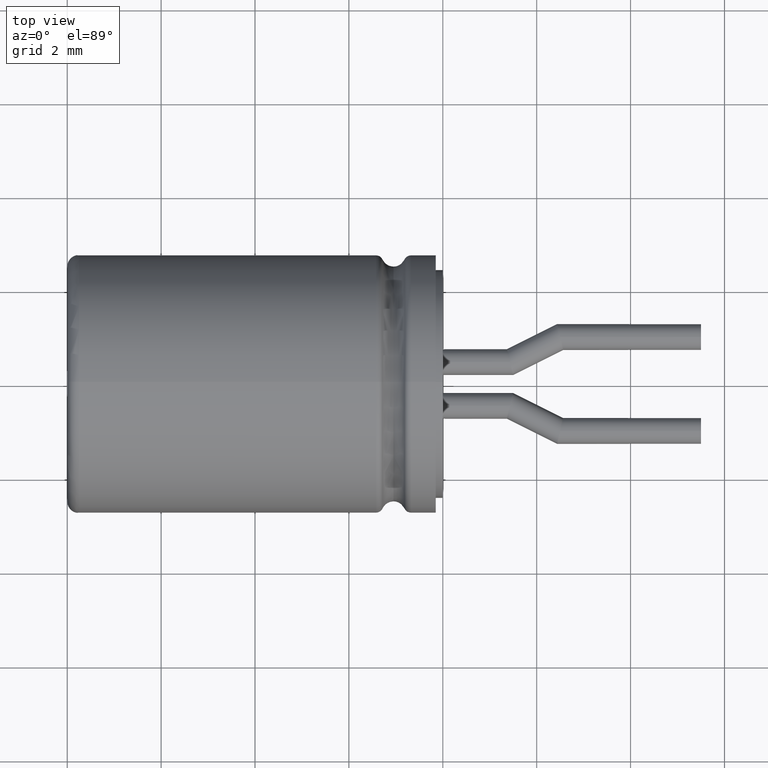
[diagram: clean part render]
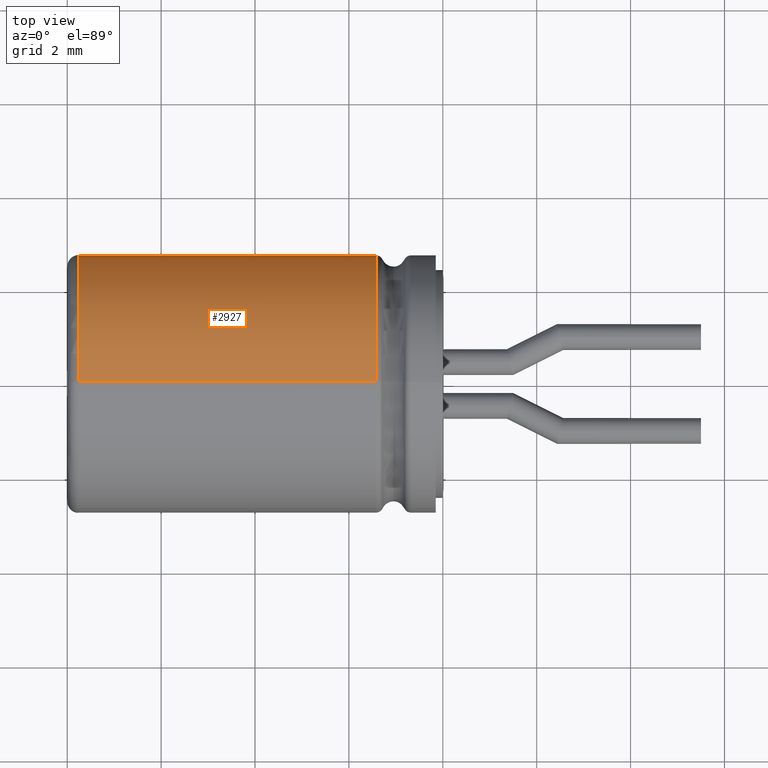
[diagram: same view with one face highlighted and labeled with its STEP entity id]
A machine part, top view. The second image highlights one B-rep face of the part: STEP entity #2927.
In plain terms, the highlighted cylindrical surface (partial cylindrical patch) has radius 2.75 mm, axis along (-1, -0, -0).
Its self-contained STEP definition (entity closure, byte-faithful):
#3 = EDGE_LOOP ( 'NONE', ( #341, #646, #3466, #445 ) ) ;
#249 = EDGE_CURVE ( 'NONE', #449, #412, #2370, .T. ) ;
#275 = EDGE_CURVE ( 'NONE', #1449, #592, #2414, .T. ) ;
#323 = VECTOR ( 'NONE', #3931, 1000.000000000000000 ) ;
#341 = ORIENTED_EDGE ( 'NONE', *, *, #672, .T. ) ;
#412 = VERTEX_POINT ( 'NONE', #3397 ) ;
#420 = CARTESIAN_POINT ( 'NONE',  ( 6.579190075645214200, 0.0000000000000000000, 2.750000000000000000 ) ) ;
#445 = ORIENTED_EDGE ( 'NONE', *, *, #275, .F. ) ;
#449 = VERTEX_POINT ( 'NONE', #613 ) ;
#475 = AXIS2_PLACEMENT_3D ( 'NONE', #1681, #1978, #3252 ) ;
#592 = VERTEX_POINT ( 'NONE', #1295 ) ;
#613 = CARTESIAN_POINT ( 'NONE',  ( 6.579190075645214200, 3.367778697655221000E-016, -2.750000000000000000 ) ) ;
#646 = ORIENTED_EDGE ( 'NONE', *, *, #249, .T. ) ;
#672 = EDGE_CURVE ( 'NONE', #1449, #449, #3185, .T. ) ;
#721 = CARTESIAN_POINT ( 'NONE',  ( 7.849999999999999600, 0.0000000000000000000, 0.0000000000000000000 ) ) ;
#1102 = DIRECTION ( 'NONE',  ( -1.000000000000000000, -0.0000000000000000000, -0.0000000000000000000 ) ) ;
#1213 = VECTOR ( 'NONE', #1102, 1000.000000000000000 ) ;
#1295 = CARTESIAN_POINT ( 'NONE',  ( 0.2500000000000002200, 0.0000000000000000000, 2.750000000000000000 ) ) ;
#1339 = DIRECTION ( 'NONE',  ( -1.000000000000000000, -0.0000000000000000000, -0.0000000000000000000 ) ) ;
#1449 = VERTEX_POINT ( 'NONE', #420 ) ;
#1681 = CARTESIAN_POINT ( 'NONE',  ( 0.2500000000000002200, 0.0000000000000000000, 0.0000000000000000000 ) ) ;
#1978 = DIRECTION ( 'NONE',  ( 1.000000000000000000, 0.0000000000000000000, 0.0000000000000000000 ) ) ;
#2033 = CYLINDRICAL_SURFACE ( 'NONE', #3638, 2.750000000000000000 ) ;
#2370 = LINE ( 'NONE', #3901, #1213 ) ;
#2414 = LINE ( 'NONE', #3920, #323 ) ;
#2435 = FACE_OUTER_BOUND ( 'NONE', #3, .T. ) ;
#2458 = AXIS2_PLACEMENT_3D ( 'NONE', #2566, #3512, #3832 ) ;
#2566 = CARTESIAN_POINT ( 'NONE',  ( 6.579190075645214200, 0.0000000000000000000, 0.0000000000000000000 ) ) ;
#2919 = DIRECTION ( 'NONE',  ( 0.0000000000000000000, 0.0000000000000000000, 1.000000000000000000 ) ) ;
#2927 = ADVANCED_FACE ( 'NONE', ( #2435 ), #2033, .T. ) ;
#3147 = CIRCLE ( 'NONE', #475, 2.750000000000000000 ) ;
#3185 = CIRCLE ( 'NONE', #2458, 2.750000000000000000 ) ;
#3252 = DIRECTION ( 'NONE',  ( 0.0000000000000000000, 0.0000000000000000000, -1.000000000000000000 ) ) ;
#3397 = CARTESIAN_POINT ( 'NONE',  ( 0.2500000000000002200, 3.367778697655221000E-016, -2.750000000000000000 ) ) ;
#3466 = ORIENTED_EDGE ( 'NONE', *, *, #4087, .T. ) ;
#3512 = DIRECTION ( 'NONE',  ( -1.000000000000000000, -0.0000000000000000000, -0.0000000000000000000 ) ) ;
#3638 = AXIS2_PLACEMENT_3D ( 'NONE', #721, #1339, #2919 ) ;
#3832 = DIRECTION ( 'NONE',  ( 0.0000000000000000000, 0.0000000000000000000, 1.000000000000000000 ) ) ;
#3901 = CARTESIAN_POINT ( 'NONE',  ( 7.849999999999999600, 3.367778697655221000E-016, -2.750000000000000000 ) ) ;
#3920 = CARTESIAN_POINT ( 'NONE',  ( 7.849999999999999600, 0.0000000000000000000, 2.750000000000000000 ) ) ;
#3931 = DIRECTION ( 'NONE',  ( -1.000000000000000000, -0.0000000000000000000, -0.0000000000000000000 ) ) ;
#4087 = EDGE_CURVE ( 'NONE', #412, #592, #3147, .T. ) ;